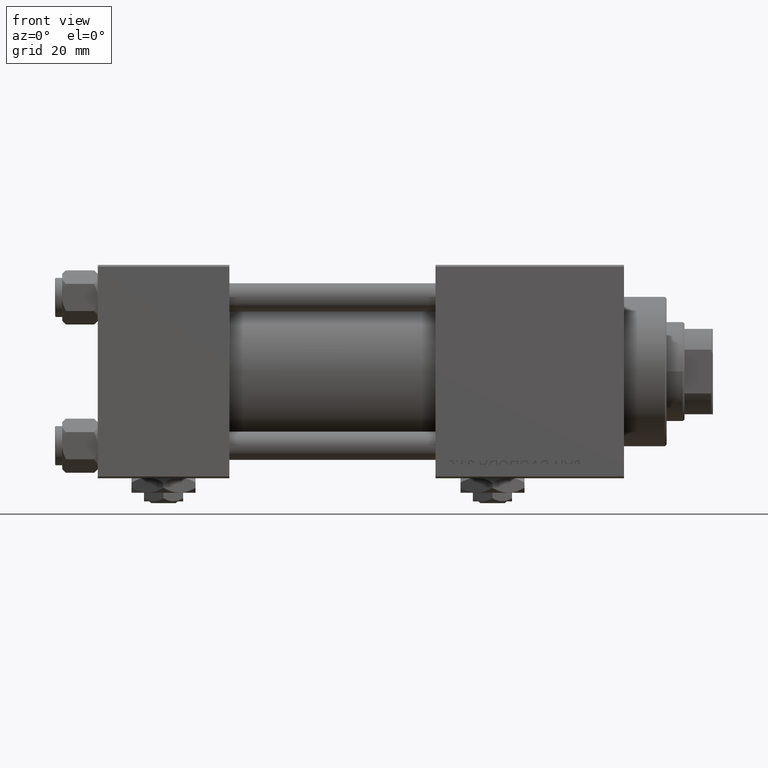
[diagram: clean part render]
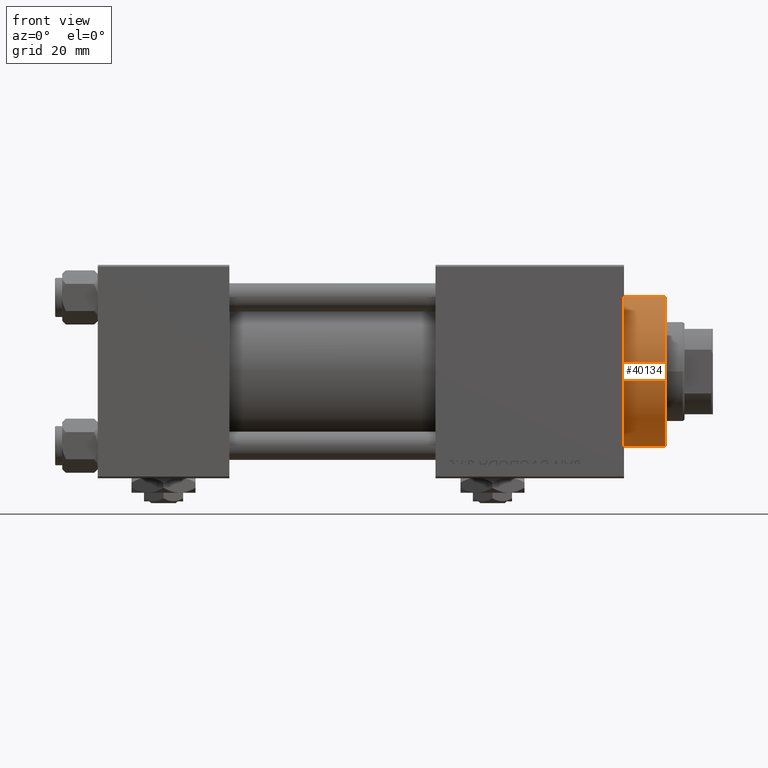
[diagram: same view with one face highlighted and labeled with its STEP entity id]
A machine part, front view. The second image highlights one B-rep face of the part: STEP entity #40134.
In plain terms, the highlighted cylindrical surface (partial cylindrical patch) has radius 21 mm, axis along (-1, -0, -0).
Its self-contained STEP definition (entity closure, byte-faithful):
#1875 = CYLINDRICAL_SURFACE ( 'NONE', #22496, 21.00000000000000000 ) ;
#3552 = VECTOR ( 'NONE', #27620, 1000.000000000000000 ) ;
#4653 = CARTESIAN_POINT ( 'NONE',  ( -21.00000000000000000, 0.000000000000000000, 28.69999999999999929 ) ) ;
#5728 = CARTESIAN_POINT ( 'NONE',  ( 21.00000000000000000, 2.571758278209441661E-15, 28.69999999999999929 ) ) ;
#9531 = EDGE_LOOP ( 'NONE', ( #23045, #39822, #37156, #47712 ) ) ;
#9535 = EDGE_CURVE ( 'NONE', #30305, #17079, #10705, .T. ) ;
#10079 = CARTESIAN_POINT ( 'NONE',  ( 0.000000000000000000, 0.000000000000000000, 40.70000000000000284 ) ) ;
#10705 = CIRCLE ( 'NONE', #35198, 21.00000000000000000 ) ;
#11490 = CARTESIAN_POINT ( 'NONE',  ( 21.00000000000000000, 2.571758278209441661E-15, 40.70000000000000284 ) ) ;
#11833 = CARTESIAN_POINT ( 'NONE',  ( -21.00000000000000000, 0.000000000000000000, 40.70000000000000284 ) ) ;
#12088 = DIRECTION ( 'NONE',  ( -0.000000000000000000, -0.000000000000000000, -1.000000000000000000 ) ) ;
#13078 = CARTESIAN_POINT ( 'NONE',  ( -21.00000000000000000, 0.000000000000000000, 40.19999999999998863 ) ) ;
#15829 = CARTESIAN_POINT ( 'NONE',  ( 0.000000000000000000, 0.000000000000000000, 40.19999999999998863 ) ) ;
#16089 = EDGE_CURVE ( 'NONE', #17079, #24796, #43832, .T. ) ;
#16828 = VECTOR ( 'NONE', #12088, 1000.000000000000000 ) ;
#17079 = VERTEX_POINT ( 'NONE', #13078 ) ;
#19161 = LINE ( 'NONE', #11490, #3552 ) ;
#19553 = DIRECTION ( 'NONE',  ( 1.000000000000000000, 0.000000000000000000, 0.000000000000000000 ) ) ;
#20481 = CARTESIAN_POINT ( 'NONE',  ( 21.00000000000000000, 2.571758278209441661E-15, 40.19999999999998863 ) ) ;
#20787 = CIRCLE ( 'NONE', #27547, 21.00000000000000000 ) ;
#22496 = AXIS2_PLACEMENT_3D ( 'NONE', #10079, #50241, #25928 ) ;
#22939 = DIRECTION ( 'NONE',  ( 0.000000000000000000, 0.000000000000000000, 1.000000000000000000 ) ) ;
#23045 = ORIENTED_EDGE ( 'NONE', *, *, #25837, .F. ) ;
#24796 = VERTEX_POINT ( 'NONE', #4653 ) ;
#25837 = EDGE_CURVE ( 'NONE', #30305, #38048, #19161, .T. ) ;
#25928 = DIRECTION ( 'NONE',  ( -1.000000000000000000, 0.000000000000000000, 0.000000000000000000 ) ) ;
#27547 = AXIS2_PLACEMENT_3D ( 'NONE', #36130, #22939, #39583 ) ;
#27620 = DIRECTION ( 'NONE',  ( -0.000000000000000000, -0.000000000000000000, -1.000000000000000000 ) ) ;
#30305 = VERTEX_POINT ( 'NONE', #20481 ) ;
#31973 = DIRECTION ( 'NONE',  ( 0.000000000000000000, 0.000000000000000000, -1.000000000000000000 ) ) ;
#35198 = AXIS2_PLACEMENT_3D ( 'NONE', #15829, #31973, #19553 ) ;
#36130 = CARTESIAN_POINT ( 'NONE',  ( 0.000000000000000000, 0.000000000000000000, 28.69999999999999929 ) ) ;
#37156 = ORIENTED_EDGE ( 'NONE', *, *, #16089, .T. ) ;
#38048 = VERTEX_POINT ( 'NONE', #5728 ) ;
#39132 = FACE_OUTER_BOUND ( 'NONE', #9531, .T. ) ;
#39583 = DIRECTION ( 'NONE',  ( 1.000000000000000000, 0.000000000000000000, 0.000000000000000000 ) ) ;
#39822 = ORIENTED_EDGE ( 'NONE', *, *, #9535, .T. ) ;
#40134 = ADVANCED_FACE ( 'NONE', ( #39132 ), #1875, .T. ) ;
#40612 = EDGE_CURVE ( 'NONE', #24796, #38048, #20787, .T. ) ;
#43832 = LINE ( 'NONE', #11833, #16828 ) ;
#47712 = ORIENTED_EDGE ( 'NONE', *, *, #40612, .T. ) ;
#50241 = DIRECTION ( 'NONE',  ( -0.000000000000000000, -0.000000000000000000, -1.000000000000000000 ) ) ;